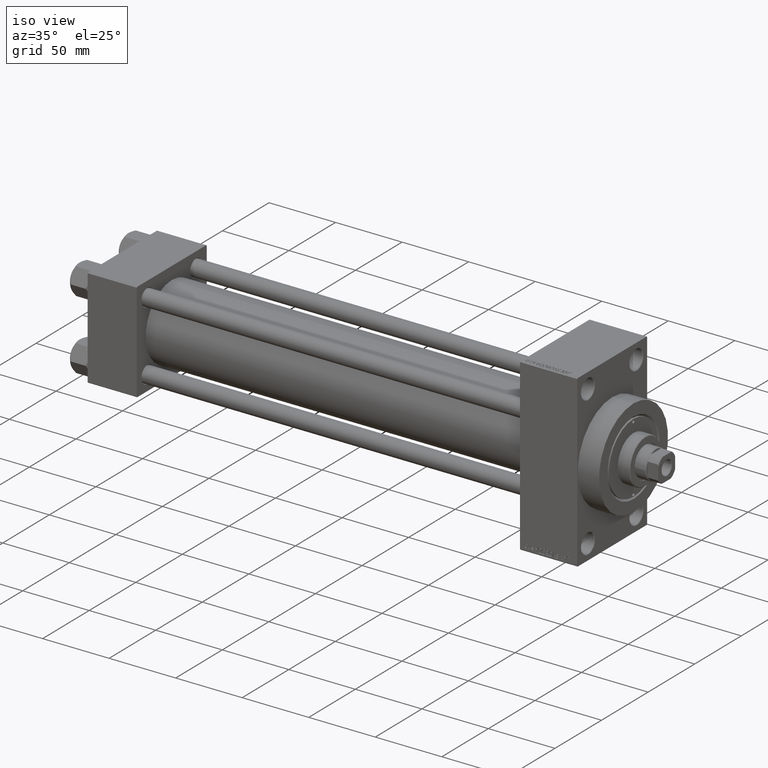
[diagram: clean part render]
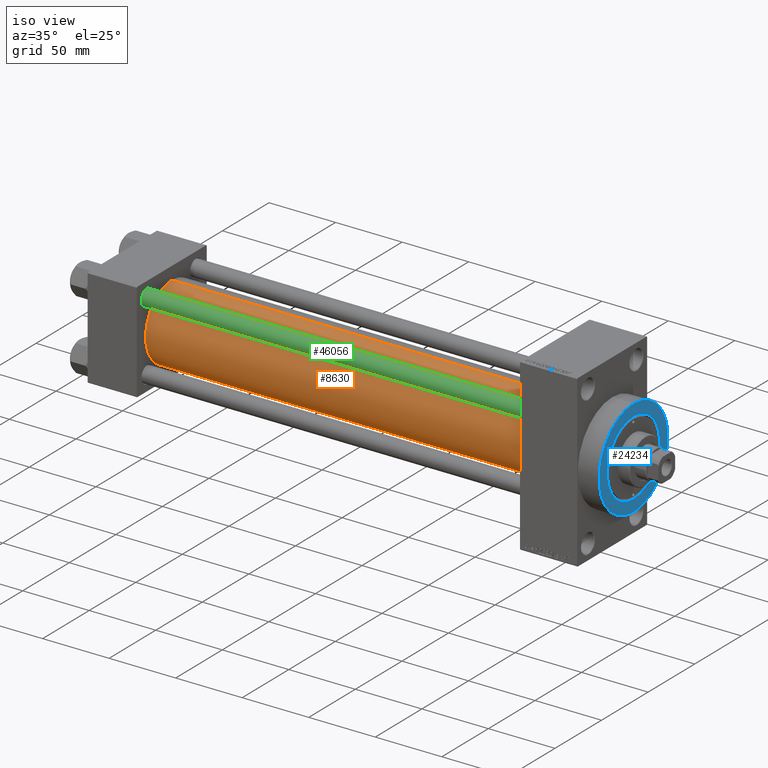
[diagram: same view with three faces highlighted in distinct colors, each labeled with its STEP entity id]
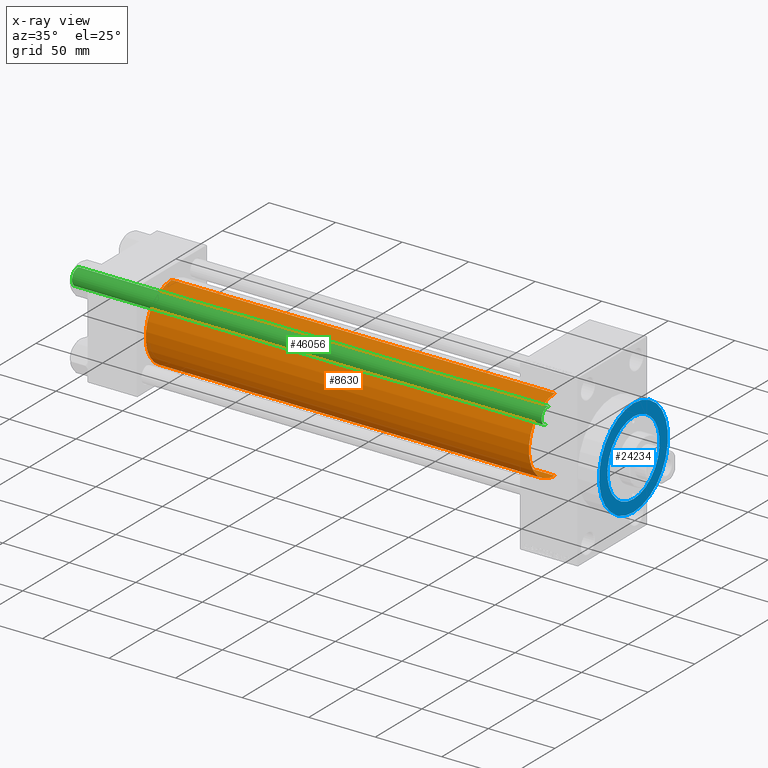
[diagram: x-ray of the same camera — body ghosted, the three highlighted faces saturated]
A machine part, iso view with three faces highlighted in distinct colors.
The next image is the same camera in x-ray (body ghosted, the three faces saturated) — at least one of them is partly hidden behind the body in this view.
Their STEP definitions:

[orange] entity #8630 — the highlighted cylindrical surface (partial cylindrical patch) has radius 28 mm, axis along (-1, -0, -0).
#2001 = VERTEX_POINT ( 'NONE', #20182 ) ;
#2465 = CARTESIAN_POINT ( 'NONE',  ( 36.99999999999997868, -2.602085213965210642E-15, 0.000000000000000000 ) ) ;
#3677 = AXIS2_PLACEMENT_3D ( 'NONE', #44472, #30807, #8759 ) ;
#6128 = VERTEX_POINT ( 'NONE', #39745 ) ;
#7424 = ORIENTED_EDGE ( 'NONE', *, *, #17054, .F. ) ;
#8630 = ADVANCED_FACE ( 'NONE', ( #23370 ), #37767, .T. ) ;
#8759 = DIRECTION ( 'NONE',  ( 0.000000000000000000, 0.000000000000000000, 1.000000000000000000 ) ) ;
#10279 = CARTESIAN_POINT ( 'NONE',  ( 324.9999999999999432, 8.269258236473784371E-16, -28.00000000000000000 ) ) ;
#10668 = VERTEX_POINT ( 'NONE', #13845 ) ;
#11505 = AXIS2_PLACEMENT_3D ( 'NONE', #46413, #13574, #36568 ) ;
#13565 = ORIENTED_EDGE ( 'NONE', *, *, #44030, .T. ) ;
#13574 = DIRECTION ( 'NONE',  ( 1.000000000000000000, 0.000000000000000000, 0.000000000000000000 ) ) ;
#13845 = CARTESIAN_POINT ( 'NONE',  ( 36.99999999999997868, -2.602085213965210642E-15, 28.00000000000000000 ) ) ;
#14963 = CIRCLE ( 'NONE', #27936, 28.00000000000000000 ) ;
#16596 = CARTESIAN_POINT ( 'NONE',  ( 36.99999999999997868, 8.269258236473784371E-16, -28.00000000000000000 ) ) ;
#17054 = EDGE_CURVE ( 'NONE', #6128, #2001, #28426, .T. ) ;
#18043 = DIRECTION ( 'NONE',  ( -1.000000000000000000, -0.000000000000000000, -0.000000000000000000 ) ) ;
#20182 = CARTESIAN_POINT ( 'NONE',  ( 324.9999999999999432, 8.269258236473784371E-16, -28.00000000000000000 ) ) ;
#20827 = DIRECTION ( 'NONE',  ( -1.000000000000000000, -0.000000000000000000, -0.000000000000000000 ) ) ;
#21453 = ORIENTED_EDGE ( 'NONE', *, *, #27749, .F. ) ;
#22863 = EDGE_LOOP ( 'NONE', ( #21453, #7424, #13565, #43852 ) ) ;
#23040 = VECTOR ( 'NONE', #20827, 1000.000000000000000 ) ;
#23370 = FACE_OUTER_BOUND ( 'NONE', #22863, .T. ) ;
#24183 = VECTOR ( 'NONE', #18043, 1000.000000000000000 ) ;
#27465 = LINE ( 'NONE', #42086, #24183 ) ;
#27749 = EDGE_CURVE ( 'NONE', #2001, #37306, #42628, .T. ) ;
#27936 = AXIS2_PLACEMENT_3D ( 'NONE', #2465, #32412, #38905 ) ;
#28426 = CIRCLE ( 'NONE', #11505, 28.00000000000000000 ) ;
#30807 = DIRECTION ( 'NONE',  ( -1.000000000000000000, -0.000000000000000000, -0.000000000000000000 ) ) ;
#32412 = DIRECTION ( 'NONE',  ( 1.000000000000000000, -0.000000000000000000, 0.000000000000000000 ) ) ;
#36568 = DIRECTION ( 'NONE',  ( 0.000000000000000000, 0.000000000000000000, -1.000000000000000000 ) ) ;
#37306 = VERTEX_POINT ( 'NONE', #16596 ) ;
#37767 = CYLINDRICAL_SURFACE ( 'NONE', #3677, 28.00000000000000000 ) ;
#38905 = DIRECTION ( 'NONE',  ( 0.000000000000000000, 0.000000000000000000, 1.000000000000000000 ) ) ;
#39745 = CARTESIAN_POINT ( 'NONE',  ( 324.9999999999999432, -2.602085213965210642E-15, 28.00000000000000000 ) ) ;
#42086 = CARTESIAN_POINT ( 'NONE',  ( 324.9999999999999432, -2.602085213965210642E-15, 28.00000000000000000 ) ) ;
#42145 = EDGE_CURVE ( 'NONE', #10668, #37306, #14963, .T. ) ;
#42628 = LINE ( 'NONE', #10279, #23040 ) ;
#43852 = ORIENTED_EDGE ( 'NONE', *, *, #42145, .T. ) ;
#44030 = EDGE_CURVE ( 'NONE', #6128, #10668, #27465, .T. ) ;
#44472 = CARTESIAN_POINT ( 'NONE',  ( 324.9999999999999432, -2.602085213965210642E-15, 0.000000000000000000 ) ) ;
#46413 = CARTESIAN_POINT ( 'NONE',  ( 324.9999999999999432, -2.602085213965210642E-15, 0.000000000000000000 ) ) ;

[blue] entity #24234 — the highlighted planar face has unit normal (1, 0, 0).
#435 = PLANE ( 'NONE',  #26077 ) ;
#2000 = AXIS2_PLACEMENT_3D ( 'NONE', #34887, #30592, #9728 ) ;
#3084 = DIRECTION ( 'NONE',  ( -1.000000000000000000, -0.000000000000000000, -0.000000000000000000 ) ) ;
#3735 = EDGE_CURVE ( 'NONE', #12473, #17960, #17335, .T. ) ;
#4166 = VERTEX_POINT ( 'NONE', #7249 ) ;
#7249 = CARTESIAN_POINT ( 'NONE',  ( 383.9999999999999432, 3.429011037612599137E-15, 28.00000000000008171 ) ) ;
#9197 = EDGE_LOOP ( 'NONE', ( #24964, #43120 ) ) ;
#9575 = CARTESIAN_POINT ( 'NONE',  ( 383.9999999999999432, 0.000000000000000000, 0.000000000000000000 ) ) ;
#9728 = DIRECTION ( 'NONE',  ( 0.000000000000000000, 0.000000000000000000, -1.000000000000000000 ) ) ;
#11260 = EDGE_CURVE ( 'NONE', #4166, #16202, #43567, .T. ) ;
#12473 = VERTEX_POINT ( 'NONE', #17304 ) ;
#13389 = CIRCLE ( 'NONE', #17972, 37.00000000000000000 ) ;
#15172 = CARTESIAN_POINT ( 'NONE',  ( 383.9999999999999432, 0.000000000000000000, -28.00000000000008171 ) ) ;
#16202 = VERTEX_POINT ( 'NONE', #15172 ) ;
#17235 = CARTESIAN_POINT ( 'NONE',  ( 383.9999999999999432, 0.000000000000000000, 0.000000000000000000 ) ) ;
#17304 = CARTESIAN_POINT ( 'NONE',  ( 383.9999999999999432, 4.531193156845206793E-15, -37.00000000000000000 ) ) ;
#17335 = CIRCLE ( 'NONE', #2000, 37.00000000000000000 ) ;
#17575 = AXIS2_PLACEMENT_3D ( 'NONE', #46752, #46998, #21574 ) ;
#17960 = VERTEX_POINT ( 'NONE', #41113 ) ;
#17972 = AXIS2_PLACEMENT_3D ( 'NONE', #17235, #46483, #31376 ) ;
#18901 = CARTESIAN_POINT ( 'NONE',  ( 383.9999999999999432, 0.000000000000000000, 0.000000000000000000 ) ) ;
#19153 = EDGE_LOOP ( 'NONE', ( #40967, #30911 ) ) ;
#21574 = DIRECTION ( 'NONE',  ( 0.000000000000000000, 0.000000000000000000, -1.000000000000000000 ) ) ;
#24234 = ADVANCED_FACE ( 'NONE', ( #37117, #33042 ), #435, .T. ) ;
#24964 = ORIENTED_EDGE ( 'NONE', *, *, #37670, .T. ) ;
#26077 = AXIS2_PLACEMENT_3D ( 'NONE', #18901, #36882, #44295 ) ;
#30592 = DIRECTION ( 'NONE',  ( 1.000000000000000000, 0.000000000000000000, 0.000000000000000000 ) ) ;
#30911 = ORIENTED_EDGE ( 'NONE', *, *, #3735, .T. ) ;
#31376 = DIRECTION ( 'NONE',  ( 0.000000000000000000, 0.000000000000000000, -1.000000000000000000 ) ) ;
#33042 = FACE_OUTER_BOUND ( 'NONE', #19153, .T. ) ;
#34887 = CARTESIAN_POINT ( 'NONE',  ( 383.9999999999999432, 0.000000000000000000, 0.000000000000000000 ) ) ;
#36882 = DIRECTION ( 'NONE',  ( 1.000000000000000000, 0.000000000000000000, 0.000000000000000000 ) ) ;
#37117 = FACE_BOUND ( 'NONE', #9197, .T. ) ;
#37670 = EDGE_CURVE ( 'NONE', #16202, #4166, #39430, .T. ) ;
#37733 = EDGE_CURVE ( 'NONE', #17960, #12473, #13389, .T. ) ;
#38678 = AXIS2_PLACEMENT_3D ( 'NONE', #9575, #3084, #42637 ) ;
#39430 = CIRCLE ( 'NONE', #38678, 28.00000000000008171 ) ;
#40967 = ORIENTED_EDGE ( 'NONE', *, *, #37733, .T. ) ;
#41113 = CARTESIAN_POINT ( 'NONE',  ( 383.9999999999999432, 0.000000000000000000, 37.00000000000000000 ) ) ;
#42637 = DIRECTION ( 'NONE',  ( 0.000000000000000000, 0.000000000000000000, -1.000000000000000000 ) ) ;
#43120 = ORIENTED_EDGE ( 'NONE', *, *, #11260, .T. ) ;
#43567 = CIRCLE ( 'NONE', #17575, 28.00000000000008171 ) ;
#44295 = DIRECTION ( 'NONE',  ( 0.000000000000000000, 0.000000000000000000, -1.000000000000000000 ) ) ;
#46483 = DIRECTION ( 'NONE',  ( 1.000000000000000000, 0.000000000000000000, 0.000000000000000000 ) ) ;
#46752 = CARTESIAN_POINT ( 'NONE',  ( 383.9999999999999432, 0.000000000000000000, 0.000000000000000000 ) ) ;
#46998 = DIRECTION ( 'NONE',  ( -1.000000000000000000, -0.000000000000000000, -0.000000000000000000 ) ) ;

[green] entity #46056 — the highlighted cylindrical surface (edge-blend (fillet) strip) has radius 6 mm, axis along (1, 0, 0).
#192 = DIRECTION ( 'NONE',  ( 0.000000000000000000, 0.000000000000000000, -1.000000000000000000 ) ) ;
#912 = DIRECTION ( 'NONE',  ( -0.000000000000000000, -0.000000000000000000, -1.000000000000000000 ) ) ;
#1712 = CARTESIAN_POINT ( 'NONE',  ( -6.000000000000000888, 0.000000000000000000, 354.0000000000000000 ) ) ;
#4819 = CARTESIAN_POINT ( 'NONE',  ( 6.000000000000000888, 7.347880794884120722E-16, 353.5000000000000000 ) ) ;
#8612 = AXIS2_PLACEMENT_3D ( 'NONE', #10998, #192, #47438 ) ;
#10998 = CARTESIAN_POINT ( 'NONE',  ( 0.000000000000000000, 0.000000000000000000, 353.5000000000000000 ) ) ;
#12201 = VERTEX_POINT ( 'NONE', #46857 ) ;
#13018 = EDGE_LOOP ( 'NONE', ( #34286, #22624, #31329, #33536 ) ) ;
#14117 = EDGE_CURVE ( 'NONE', #47409, #12201, #45579, .T. ) ;
#16642 = AXIS2_PLACEMENT_3D ( 'NONE', #43138, #31178, #17507 ) ;
#17049 = AXIS2_PLACEMENT_3D ( 'NONE', #21425, #38301, #36054 ) ;
#17507 = DIRECTION ( 'NONE',  ( -1.000000000000000000, 0.000000000000000000, 0.000000000000000000 ) ) ;
#19175 = VECTOR ( 'NONE', #33829, 1000.000000000000000 ) ;
#20117 = VERTEX_POINT ( 'NONE', #4819 ) ;
#21425 = CARTESIAN_POINT ( 'NONE',  ( 0.000000000000000000, 0.000000000000000000, 0.5000000000000559552 ) ) ;
#22286 = VECTOR ( 'NONE', #912, 1000.000000000000000 ) ;
#22624 = ORIENTED_EDGE ( 'NONE', *, *, #24400, .T. ) ;
#24400 = EDGE_CURVE ( 'NONE', #20117, #30104, #40946, .T. ) ;
#30104 = VERTEX_POINT ( 'NONE', #33743 ) ;
#31178 = DIRECTION ( 'NONE',  ( -0.000000000000000000, -0.000000000000000000, -1.000000000000000000 ) ) ;
#31329 = ORIENTED_EDGE ( 'NONE', *, *, #31872, .T. ) ;
#31655 = EDGE_CURVE ( 'NONE', #47409, #20117, #39231, .T. ) ;
#31872 = EDGE_CURVE ( 'NONE', #30104, #12201, #37730, .T. ) ;
#33536 = ORIENTED_EDGE ( 'NONE', *, *, #14117, .F. ) ;
#33743 = CARTESIAN_POINT ( 'NONE',  ( 6.000000000000000888, 7.347880794884120722E-16, 0.5000000000000559552 ) ) ;
#33745 = CARTESIAN_POINT ( 'NONE',  ( 6.000000000000000888, 7.347880794884120722E-16, 354.0000000000000000 ) ) ;
#33829 = DIRECTION ( 'NONE',  ( -0.000000000000000000, -0.000000000000000000, -1.000000000000000000 ) ) ;
#34286 = ORIENTED_EDGE ( 'NONE', *, *, #31655, .T. ) ;
#35575 = CARTESIAN_POINT ( 'NONE',  ( -6.000000000000000888, 0.000000000000000000, 353.5000000000000000 ) ) ;
#36054 = DIRECTION ( 'NONE',  ( 1.000000000000000000, 0.000000000000000000, 0.000000000000000000 ) ) ;
#37730 = CIRCLE ( 'NONE', #17049, 6.000000000000000888 ) ;
#38301 = DIRECTION ( 'NONE',  ( -0.000000000000000000, -0.000000000000000000, 1.000000000000000000 ) ) ;
#39231 = CIRCLE ( 'NONE', #8612, 6.000000000000000888 ) ;
#40946 = LINE ( 'NONE', #33745, #22286 ) ;
#43138 = CARTESIAN_POINT ( 'NONE',  ( 0.000000000000000000, 0.000000000000000000, 354.0000000000000000 ) ) ;
#45579 = LINE ( 'NONE', #1712, #19175 ) ;
#45816 = FACE_OUTER_BOUND ( 'NONE', #13018, .T. ) ;
#46056 = ADVANCED_FACE ( 'NONE', ( #45816 ), #46514, .T. ) ;
#46514 = CYLINDRICAL_SURFACE ( 'NONE', #16642, 6.000000000000000888 ) ;
#46857 = CARTESIAN_POINT ( 'NONE',  ( -6.000000000000000888, 0.000000000000000000, 0.5000000000000559552 ) ) ;
#47409 = VERTEX_POINT ( 'NONE', #35575 ) ;
#47438 = DIRECTION ( 'NONE',  ( 1.000000000000000000, 0.000000000000000000, 0.000000000000000000 ) ) ;